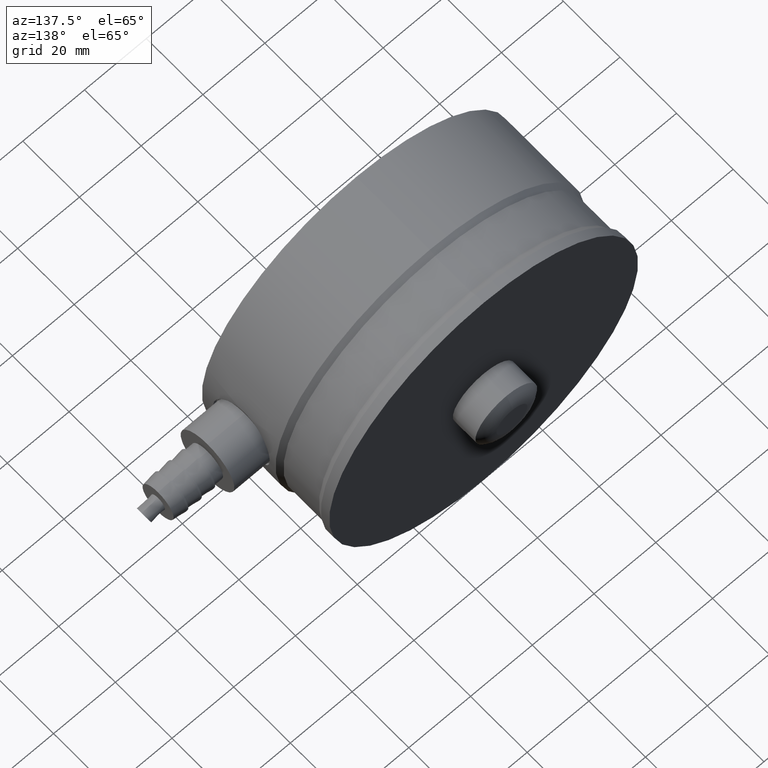
[diagram: clean part render]
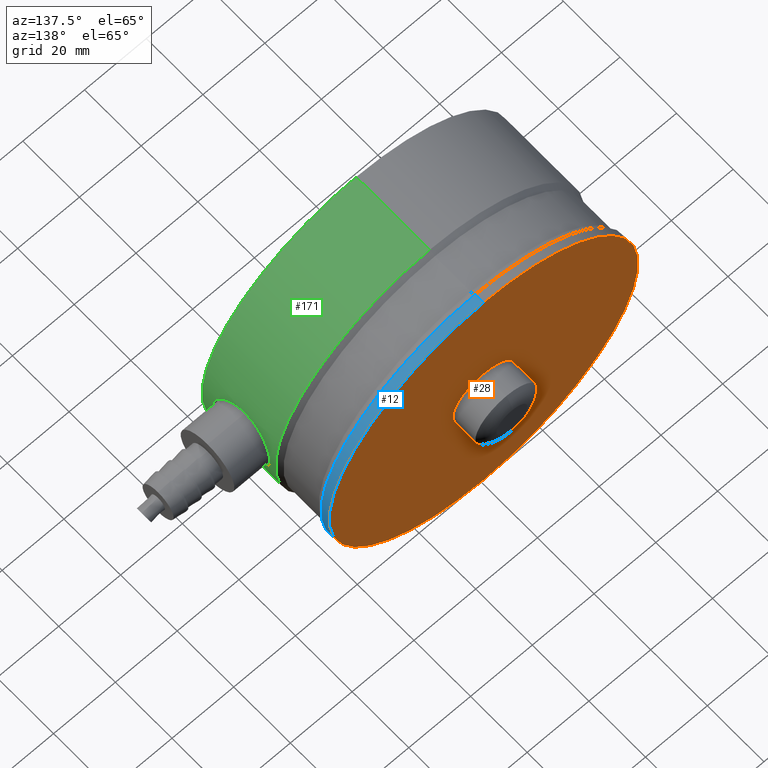
[diagram: same view with three faces highlighted in distinct colors, each labeled with its STEP entity id]
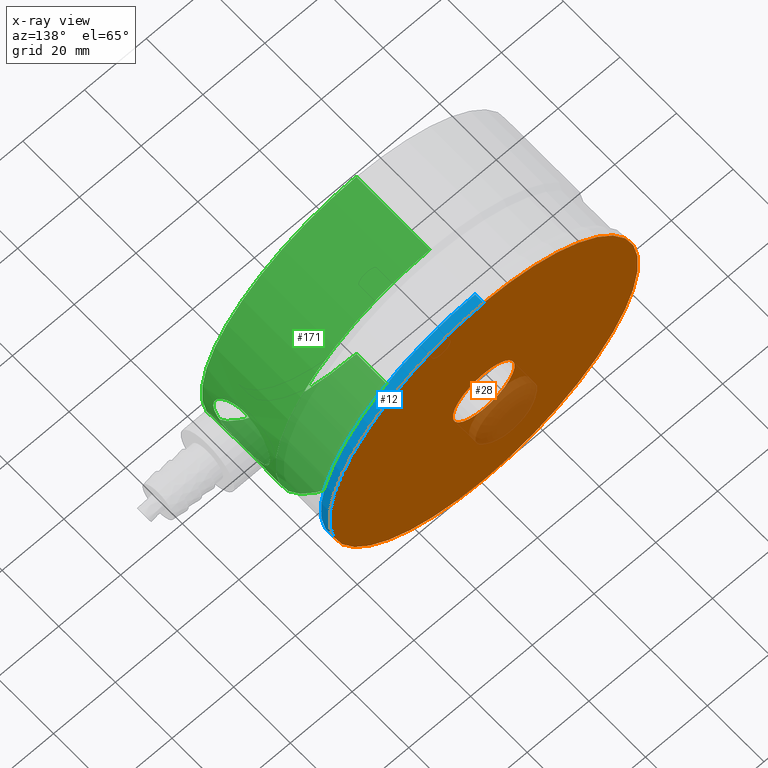
[diagram: x-ray of the same camera — body ghosted, the three highlighted faces saturated]
A machine part, auxiliary view with three faces highlighted in distinct colors.
The next image is the same camera in x-ray (body ghosted, the three faces saturated) — at least one of them is partly hidden behind the body in this view.
Their STEP definitions:

[orange] entity #28 — the highlighted planar face has unit normal (0, 1, 0).
#5 = VERTEX_POINT ( 'NONE', #1253 ) ;
#6 = EDGE_CURVE ( 'NONE', #80, #5, #1329, .T. ) ;
#21 = EDGE_CURVE ( 'NONE', #168, #167, #449, .T. ) ;
#26 = ORIENTED_EDGE ( 'NONE', *, *, #88, .F. ) ;
#28 = ADVANCED_FACE ( 'NONE', ( #444, #458 ), #457, .T. ) ;
#31 = ORIENTED_EDGE ( 'NONE', *, *, #32, .F. ) ;
#32 = EDGE_CURVE ( 'NONE', #5, #80, #454, .T. ) ;
#33 = EDGE_LOOP ( 'NONE', ( #31, #38 ) ) ;
#34 = ORIENTED_EDGE ( 'NONE', *, *, #21, .F. ) ;
#35 = EDGE_LOOP ( 'NONE', ( #26, #34 ) ) ;
#38 = ORIENTED_EDGE ( 'NONE', *, *, #6, .F. ) ;
#80 = VERTEX_POINT ( 'NONE', #529 ) ;
#88 = EDGE_CURVE ( 'NONE', #167, #168, #486, .T. ) ;
#167 = VERTEX_POINT ( 'NONE', #838 ) ;
#168 = VERTEX_POINT ( 'NONE', #808 ) ;
#444 = FACE_OUTER_BOUND ( 'NONE', #35, .T. ) ;
#446 = CARTESIAN_POINT ( 'NONE',  ( 0.0000000000000000000, 40.99999999999999300, 0.0000000000000000000 ) ) ;
#447 = AXIS2_PLACEMENT_3D ( 'NONE', #446, #448, #473 ) ;
#448 = DIRECTION ( 'NONE',  ( -0.0000000000000000000, -1.000000000000000000, -0.0000000000000000000 ) ) ;
#449 = CIRCLE ( 'NONE', #447, 50.00000000000000000 ) ;
#450 = DIRECTION ( 'NONE',  ( 0.0000000000000000000, 0.0000000000000000000, 1.000000000000000000 ) ) ;
#451 = DIRECTION ( 'NONE',  ( 0.0000000000000000000, 1.000000000000000000, 0.0000000000000000000 ) ) ;
#452 = CARTESIAN_POINT ( 'NONE',  ( 0.0000000000000000000, 40.99999999999999300, 0.0000000000000000000 ) ) ;
#453 = AXIS2_PLACEMENT_3D ( 'NONE', #452, #451, #450 ) ;
#454 = CIRCLE ( 'NONE', #453, 9.999999999999998200 ) ;
#457 = PLANE ( 'NONE',  #460 ) ;
#458 = FACE_BOUND ( 'NONE', #33, .T. ) ;
#459 = CARTESIAN_POINT ( 'NONE',  ( 50.00000000000000000, 40.99999999999999300, 0.0000000000000000000 ) ) ;
#460 = AXIS2_PLACEMENT_3D ( 'NONE', #459, #476, #475 ) ;
#473 = DIRECTION ( 'NONE',  ( 0.0000000000000000000, 0.0000000000000000000, -1.000000000000000000 ) ) ;
#475 = DIRECTION ( 'NONE',  ( 0.0000000000000000000, -0.0000000000000000000, 1.000000000000000000 ) ) ;
#476 = DIRECTION ( 'NONE',  ( 0.0000000000000000000, 1.000000000000000000, 0.0000000000000000000 ) ) ;
#483 = DIRECTION ( 'NONE',  ( 0.0000000000000000000, 0.0000000000000000000, -1.000000000000000000 ) ) ;
#484 = DIRECTION ( 'NONE',  ( -0.0000000000000000000, -1.000000000000000000, -0.0000000000000000000 ) ) ;
#485 = AXIS2_PLACEMENT_3D ( 'NONE', #575, #484, #483 ) ;
#486 = CIRCLE ( 'NONE', #485, 50.00000000000000000 ) ;
#529 = CARTESIAN_POINT ( 'NONE',  ( 1.224606353822377100E-015, 40.99999999999999300, 9.999999999999998200 ) ) ;
#575 = CARTESIAN_POINT ( 'NONE',  ( 0.0000000000000000000, 40.99999999999999300, 0.0000000000000000000 ) ) ;
#808 = CARTESIAN_POINT ( 'NONE',  ( 6.123031769111886300E-015, 40.99999999999999300, 50.00000000000000000 ) ) ;
#838 = CARTESIAN_POINT ( 'NONE',  ( 0.0000000000000000000, 40.99999999999999300, -50.00000000000000000 ) ) ;
#1253 = CARTESIAN_POINT ( 'NONE',  ( 0.0000000000000000000, 40.99999999999999300, -9.999999999999998200 ) ) ;
#1325 = DIRECTION ( 'NONE',  ( 0.0000000000000000000, 0.0000000000000000000, 1.000000000000000000 ) ) ;
#1326 = DIRECTION ( 'NONE',  ( 0.0000000000000000000, 1.000000000000000000, 0.0000000000000000000 ) ) ;
#1327 = CARTESIAN_POINT ( 'NONE',  ( 0.0000000000000000000, 40.99999999999999300, 0.0000000000000000000 ) ) ;
#1328 = AXIS2_PLACEMENT_3D ( 'NONE', #1327, #1326, #1325 ) ;
#1329 = CIRCLE ( 'NONE', #1328, 9.999999999999998200 ) ;

[blue] entity #12 — the highlighted cylindrical surface (partial cylindrical patch) has radius 50 mm, axis along (-0, -1, -0).
#8 = ORIENTED_EDGE ( 'NONE', *, *, #14, .F. ) ;
#10 = ORIENTED_EDGE ( 'NONE', *, *, #88, .T. ) ;
#11 = EDGE_LOOP ( 'NONE', ( #10, #169, #8, #25 ) ) ;
#12 = ADVANCED_FACE ( 'NONE', ( #1317 ), #1323, .T. ) ;
#14 = EDGE_CURVE ( 'NONE', #131, #16, #1309, .T. ) ;
#16 = VERTEX_POINT ( 'NONE', #443 ) ;
#25 = ORIENTED_EDGE ( 'NONE', *, *, #30, .F. ) ;
#27 = EDGE_CURVE ( 'NONE', #168, #16, #470, .T. ) ;
#30 = EDGE_CURVE ( 'NONE', #167, #131, #469, .T. ) ;
#88 = EDGE_CURVE ( 'NONE', #167, #168, #486, .T. ) ;
#131 = VERTEX_POINT ( 'NONE', #658 ) ;
#167 = VERTEX_POINT ( 'NONE', #838 ) ;
#168 = VERTEX_POINT ( 'NONE', #808 ) ;
#169 = ORIENTED_EDGE ( 'NONE', *, *, #27, .T. ) ;
#443 = CARTESIAN_POINT ( 'NONE',  ( 6.123031769111886300E-015, 37.99999999999999300, 50.00000000000000000 ) ) ;
#445 = DIRECTION ( 'NONE',  ( -0.0000000000000000000, -1.000000000000000000, -0.0000000000000000000 ) ) ;
#456 = VECTOR ( 'NONE', #445, 1000.000000000000000 ) ;
#466 = DIRECTION ( 'NONE',  ( -0.0000000000000000000, -1.000000000000000000, -0.0000000000000000000 ) ) ;
#467 = VECTOR ( 'NONE', #466, 1000.000000000000000 ) ;
#468 = CARTESIAN_POINT ( 'NONE',  ( 0.0000000000000000000, 0.0000000000000000000, -50.00000000000000000 ) ) ;
#469 = LINE ( 'NONE', #468, #467 ) ;
#470 = LINE ( 'NONE', #471, #456 ) ;
#471 = CARTESIAN_POINT ( 'NONE',  ( 6.123031769111886300E-015, 0.0000000000000000000, 50.00000000000000000 ) ) ;
#483 = DIRECTION ( 'NONE',  ( 0.0000000000000000000, 0.0000000000000000000, -1.000000000000000000 ) ) ;
#484 = DIRECTION ( 'NONE',  ( -0.0000000000000000000, -1.000000000000000000, -0.0000000000000000000 ) ) ;
#485 = AXIS2_PLACEMENT_3D ( 'NONE', #575, #484, #483 ) ;
#486 = CIRCLE ( 'NONE', #485, 50.00000000000000000 ) ;
#575 = CARTESIAN_POINT ( 'NONE',  ( 0.0000000000000000000, 40.99999999999999300, 0.0000000000000000000 ) ) ;
#658 = CARTESIAN_POINT ( 'NONE',  ( 0.0000000000000000000, 37.99999999999999300, -50.00000000000000000 ) ) ;
#808 = CARTESIAN_POINT ( 'NONE',  ( 6.123031769111886300E-015, 40.99999999999999300, 50.00000000000000000 ) ) ;
#838 = CARTESIAN_POINT ( 'NONE',  ( 0.0000000000000000000, 40.99999999999999300, -50.00000000000000000 ) ) ;
#1286 = DIRECTION ( 'NONE',  ( 0.0000000000000000000, 0.0000000000000000000, -1.000000000000000000 ) ) ;
#1287 = DIRECTION ( 'NONE',  ( -0.0000000000000000000, -1.000000000000000000, -0.0000000000000000000 ) ) ;
#1288 = AXIS2_PLACEMENT_3D ( 'NONE', #1322, #1287, #1286 ) ;
#1305 = DIRECTION ( 'NONE',  ( 0.0000000000000000000, 0.0000000000000000000, -1.000000000000000000 ) ) ;
#1306 = DIRECTION ( 'NONE',  ( -0.0000000000000000000, -1.000000000000000000, -0.0000000000000000000 ) ) ;
#1307 = CARTESIAN_POINT ( 'NONE',  ( 0.0000000000000000000, 37.99999999999999300, 0.0000000000000000000 ) ) ;
#1308 = AXIS2_PLACEMENT_3D ( 'NONE', #1307, #1306, #1305 ) ;
#1309 = CIRCLE ( 'NONE', #1308, 50.00000000000000000 ) ;
#1317 = FACE_OUTER_BOUND ( 'NONE', #11, .T. ) ;
#1322 = CARTESIAN_POINT ( 'NONE',  ( 0.0000000000000000000, 0.0000000000000000000, 0.0000000000000000000 ) ) ;
#1323 = CYLINDRICAL_SURFACE ( 'NONE', #1288, 50.00000000000000000 ) ;

[green] entity #171 — the highlighted cylindrical surface (partial cylindrical patch) has radius 50 mm, axis along (-0, -1, -0).
#13 = EDGE_CURVE ( 'NONE', #139, #159, #1285, .T. ) ;
#71 = EDGE_CURVE ( 'NONE', #175, #111, #496, .T. ) ;
#72 = ORIENTED_EDGE ( 'NONE', *, *, #160, .T. ) ;
#111 = VERTEX_POINT ( 'NONE', #599 ) ;
#116 = ORIENTED_EDGE ( 'NONE', *, *, #13, .F. ) ;
#119 = EDGE_CURVE ( 'NONE', #180, #176, #620, .T. ) ;
#120 = EDGE_CURVE ( 'NONE', #177, #155, #638, .T. ) ;
#121 = ORIENTED_EDGE ( 'NONE', *, *, #120, .T. ) ;
#122 = ORIENTED_EDGE ( 'NONE', *, *, #123, .F. ) ;
#123 = EDGE_CURVE ( 'NONE', #159, #155, #634, .T. ) ;
#139 = VERTEX_POINT ( 'NONE', #680 ) ;
#140 = EDGE_CURVE ( 'NONE', #176, #175, #635, .T. ) ;
#141 = ORIENTED_EDGE ( 'NONE', *, *, #71, .T. ) ;
#153 = ORIENTED_EDGE ( 'NONE', *, *, #173, .T. ) ;
#154 = EDGE_LOOP ( 'NONE', ( #153, #121, #122, #116 ) ) ;
#155 = VERTEX_POINT ( 'NONE', #663 ) ;
#156 = ORIENTED_EDGE ( 'NONE', *, *, #119, .T. ) ;
#159 = VERTEX_POINT ( 'NONE', #661 ) ;
#160 = EDGE_CURVE ( 'NONE', #111, #180, #762, .T. ) ;
#161 = EDGE_LOOP ( 'NONE', ( #162, #141, #72, #156 ) ) ;
#162 = ORIENTED_EDGE ( 'NONE', *, *, #140, .T. ) ;
#171 = ADVANCED_FACE ( 'NONE', ( #836, #809 ), #800, .T. ) ;
#173 = EDGE_CURVE ( 'NONE', #139, #177, #821, .T. ) ;
#175 = VERTEX_POINT ( 'NONE', #1003 ) ;
#176 = VERTEX_POINT ( 'NONE', #1029 ) ;
#177 = VERTEX_POINT ( 'NONE', #1049 ) ;
#180 = VERTEX_POINT ( 'NONE', #1028 ) ;
#465 = DIRECTION ( 'NONE',  ( -0.0000000000000000000, -1.000000000000000000, -0.0000000000000000000 ) ) ;
#493 = DIRECTION ( 'NONE',  ( 0.0000000000000000000, 1.000000000000000000, 0.0000000000000000000 ) ) ;
#494 = VECTOR ( 'NONE', #493, 1000.000000000000000 ) ;
#495 = CARTESIAN_POINT ( 'NONE',  ( 49.00000000000000000, 0.0000000000000000000, 9.949874371066206500 ) ) ;
#496 = LINE ( 'NONE', #495, #494 ) ;
#544 = CARTESIAN_POINT ( 'NONE',  ( 49.03902154903732900, 12.21727338029611200, -9.755919459366035400 ) ) ;
#599 = CARTESIAN_POINT ( 'NONE',  ( 49.00000000000000000, 10.99999999999993200, 9.949874371066206500 ) ) ;
#613 = VECTOR ( 'NONE', #465, 1000.000000000000000 ) ;
#614 = CARTESIAN_POINT ( 'NONE',  ( 49.00000000000000000, 0.0000000000000000000, -9.949874371066206500 ) ) ;
#615 = CARTESIAN_POINT ( 'NONE',  ( 49.01546948602482700, 11.61459459043106300, -9.873568253127007900 ) ) ;
#620 = LINE ( 'NONE', #614, #613 ) ;
#623 = CARTESIAN_POINT ( 'NONE',  ( 6.123031769111886300E-015, 0.0000000000000000000, 50.00000000000000000 ) ) ;
#626 = CARTESIAN_POINT ( 'NONE',  ( 0.0000000000000000000, -4.000000000000000000, 0.0000000000000000000 ) ) ;
#627 = AXIS2_PLACEMENT_3D ( 'NONE', #626, #641, #639 ) ;
#628 = CARTESIAN_POINT ( 'NONE',  ( 49.42436071877418200, 3.442528909245250500, 7.574578616590083700 ) ) ;
#629 = CARTESIAN_POINT ( 'NONE',  ( 49.48643053747486700, 2.994956445636239600, 7.162509778464515100 ) ) ;
#630 = CARTESIAN_POINT ( 'NONE',  ( 49.60894710393573300, 2.176224656899847800, 6.257852739225427300 ) ) ;
#631 = CARTESIAN_POINT ( 'NONE',  ( 49.66980869047673500, 1.803088408922743900, 5.760538067532688300 ) ) ;
#632 = CARTESIAN_POINT ( 'NONE',  ( 49.77946805256064500, 1.162867892846442900, 4.719984595329272300 ) ) ;
#633 = CARTESIAN_POINT ( 'NONE',  ( 49.82879966826207200, 0.8919576456233281300, 4.173777228931051300 ) ) ;
#634 = CIRCLE ( 'NONE', #627, 50.00000000000000000 ) ;
#635 = B_SPLINE_CURVE_WITH_KNOTS ( 'NONE', 3,
 ( #711, #710, #709, #679, #678, #677, #676, #651, #650, #649, #648, #646, #645, #644, #643, #701, #700, #699, #698, #697, #655, #654, #653, #652, #687, #686, #685, #684, #683, #682, #681, #633, #632, #631, #630, #629, #628, #724, #723, #722, #721, #720, #719, #718, #693, #692, #691, #690 ),
 .UNSPECIFIED., .F., .F.,
 ( 4, 2, 2, 2, 2, 2, 2, 2, 2, 2, 2, 2, 2, 2, 2, 2, 2, 2, 2, 2, 2, 2, 2, 4 ),
 ( 0.03234496741325317000, 0.03326190463503132800, 0.03417884185680949300, 0.03601271630036581600, 0.03692965352214397400, 0.03784659074392213200, 0.03968046518747845400, 0.04059740240925661200, 0.04151433963103477700, 0.04334821407459109300, 0.04518208851814740900, 0.04609902573992556700, 0.04701596296170372500, 0.04884983740526004100, 0.04976677462703821300, 0.05068371184881637100, 0.05251758629237268700, 0.05435146073592900300, 0.05618533517948531800, 0.05710227240126347600, 0.05801920962304164100, 0.05985308406659796400, 0.06077002128837612200, 0.06168695851015428700 ),
 .UNSPECIFIED. ) ;
#638 = LINE ( 'NONE', #623, #666 ) ;
#639 = DIRECTION ( 'NONE',  ( 0.0000000000000000000, 0.0000000000000000000, -1.000000000000000000 ) ) ;
#641 = DIRECTION ( 'NONE',  ( -0.0000000000000000000, -1.000000000000000000, -0.0000000000000000000 ) ) ;
#643 = CARTESIAN_POINT ( 'NONE',  ( 49.60915084824966900, 2.183305078391474500, -6.244440925254311400 ) ) ;
#644 = CARTESIAN_POINT ( 'NONE',  ( 49.57841625579079900, 2.380237124760455900, -6.483310341406280500 ) ) ;
#645 = CARTESIAN_POINT ( 'NONE',  ( 49.48600839315780300, 2.997804768691908700, -7.165588529500130500 ) ) ;
#646 = CARTESIAN_POINT ( 'NONE',  ( 49.42390495076711700, 3.446109304842413000, -7.577468273639726500 ) ) ;
#648 = CARTESIAN_POINT ( 'NONE',  ( 49.33456620015559200, 4.172719517396127600, -8.132384604012925100 ) ) ;
#649 = CARTESIAN_POINT ( 'NONE',  ( 49.30542105117050500, 4.424006488176758900, -8.306804594901258600 ) ) ;
#650 = CARTESIAN_POINT ( 'NONE',  ( 49.24918628750065600, 4.945347826839844500, -8.633956082244969500 ) ) ;
#651 = CARTESIAN_POINT ( 'NONE',  ( 49.22222201901190900, 5.214485557024271000, -8.785930187987586800 ) ) ;
#652 = CARTESIAN_POINT ( 'NONE',  ( 49.99709904680133100, 0.01447611026911175900, -0.6193115776203648200 ) ) ;
#653 = CARTESIAN_POINT ( 'NONE',  ( 49.98578804626875200, 0.07126489107366616700, -1.230631268631873900 ) ) ;
#654 = CARTESIAN_POINT ( 'NONE',  ( 49.97738025410004800, 0.1135673460361732000, -1.533519935580566000 ) ) ;
#655 = CARTESIAN_POINT ( 'NONE',  ( 49.94433352278042500, 0.2815379164939581500, -2.434015363180046500 ) ) ;
#661 = CARTESIAN_POINT ( 'NONE',  ( 0.0000000000000000000, -4.000000000000000000, -50.00000000000000000 ) ) ;
#663 = CARTESIAN_POINT ( 'NONE',  ( 6.123031769111886300E-015, -4.000000000000000000, 50.00000000000000000 ) ) ;
#666 = VECTOR ( 'NONE', #667, 1000.000000000000000 ) ;
#667 = DIRECTION ( 'NONE',  ( -0.0000000000000000000, -1.000000000000000000, -0.0000000000000000000 ) ) ;
#676 = CARTESIAN_POINT ( 'NONE',  ( 49.14705025730732000, 6.034072495064622300, -9.200341843327374000 ) ) ;
#677 = CARTESIAN_POINT ( 'NONE',  ( 49.10402721454962500, 6.601378391557836300, -9.424719476643753400 ) ) ;
#678 = CARTESIAN_POINT ( 'NONE',  ( 49.05347782616344400, 7.484056463383213400, -9.683182309202681600 ) ) ;
#679 = CARTESIAN_POINT ( 'NONE',  ( 49.03891099504600200, 7.784905659124578200, -9.756476725191923500 ) ) ;
#680 = CARTESIAN_POINT ( 'NONE',  ( 0.0000000000000000000, 21.99999999999998900, -50.00000000000000000 ) ) ;
#681 = CARTESIAN_POINT ( 'NONE',  ( 49.89083065143423600, 0.5603616129948576500, 3.314730772482830100 ) ) ;
#682 = CARTESIAN_POINT ( 'NONE',  ( 49.90958542239085500, 0.4619974782132269000, 3.020156810951792400 ) ) ;
#683 = CARTESIAN_POINT ( 'NONE',  ( 49.94191808664652400, 0.2942307237399626700, 2.427525906011315000 ) ) ;
#684 = CARTESIAN_POINT ( 'NONE',  ( 49.95555573981189200, 0.2244921759356902900, 2.129063702611450700 ) ) ;
#685 = CARTESIAN_POINT ( 'NONE',  ( 49.98855296125404400, 0.05678910312873500200, 1.227362592236254300 ) ) ;
#686 = CARTESIAN_POINT ( 'NONE',  ( 50.00000372153995400, -1.860769975979321100E-005, 0.6178615546164875100 ) ) ;
#687 = CARTESIAN_POINT ( 'NONE',  ( 49.99999813787019300, 9.310648999026446700E-006, -0.3093824116638402300 ) ) ;
#690 = CARTESIAN_POINT ( 'NONE',  ( 49.00000000000000000, 9.000000000000069300, 9.949874371066206500 ) ) ;
#691 = CARTESIAN_POINT ( 'NONE',  ( 49.00624567920850400, 8.693961718782814400, 9.919116366512179500 ) ) ;
#692 = CARTESIAN_POINT ( 'NONE',  ( 49.01531946113716700, 8.389783936095845700, 9.874313498196450200 ) ) ;
#693 = CARTESIAN_POINT ( 'NONE',  ( 49.03890566551002900, 7.785158523525025100, 9.756502450530405200 ) ) ;
#697 = CARTESIAN_POINT ( 'NONE',  ( 49.91173402053441800, 0.4486147774929004100, -3.025332144630061800 ) ) ;
#698 = CARTESIAN_POINT ( 'NONE',  ( 49.82849678171082500, 0.8935814802348027700, -4.177886546680792200 ) ) ;
#699 = CARTESIAN_POINT ( 'NONE',  ( 49.77901510105031900, 1.165449621460507900, -4.724562840272114700 ) ) ;
#700 = CARTESIAN_POINT ( 'NONE',  ( 49.69700594601767600, 1.644335215639358000, -5.502323110928101900 ) ) ;
#701 = CARTESIAN_POINT ( 'NONE',  ( 49.66836788768735300, 1.815890992920380800, -5.754487095018086900 ) ) ;
#709 = CARTESIAN_POINT ( 'NONE',  ( 49.01525679808209200, 8.391506810437684600, -9.874625597323763800 ) ) ;
#710 = CARTESIAN_POINT ( 'NONE',  ( 49.00621543537140900, 8.695443666800869700, -9.919265307892022300 ) ) ;
#711 = CARTESIAN_POINT ( 'NONE',  ( 49.00000000000000000, 9.000000000000069300, -9.949874371066206500 ) ) ;
#718 = CARTESIAN_POINT ( 'NONE',  ( 49.05350735674684200, 7.483315591234769700, 9.683037214528418700 ) ) ;
#719 = CARTESIAN_POINT ( 'NONE',  ( 49.10433865209091000, 6.596393072216955900, 9.423115213463351100 ) ) ;
#720 = CARTESIAN_POINT ( 'NONE',  ( 49.14747086008549800, 6.029185176688904400, 9.198063766915334200 ) ) ;
#721 = CARTESIAN_POINT ( 'NONE',  ( 49.22235964089784200, 5.213136912088877800, 8.785151030739935900 ) ) ;
#722 = CARTESIAN_POINT ( 'NONE',  ( 49.24902390790198600, 4.946952006626248500, 8.634875333706560200 ) ) ;
#723 = CARTESIAN_POINT ( 'NONE',  ( 49.30514481273289100, 4.426469418151819800, 8.308436850888112300 ) ) ;
#724 = CARTESIAN_POINT ( 'NONE',  ( 49.33463337381878200, 4.172110262645909500, 8.131996574672784900 ) ) ;
#727 = CARTESIAN_POINT ( 'NONE',  ( 49.00627309061394500, 11.30738144008270600, -9.918981373967009000 ) ) ;
#728 = CARTESIAN_POINT ( 'NONE',  ( 49.00000000000000000, 10.99999999999993200, -9.949874371066206500 ) ) ;
#735 = CARTESIAN_POINT ( 'NONE',  ( 49.00000000000000000, 10.99999999999993200, 9.949874371066206500 ) ) ;
#736 = CARTESIAN_POINT ( 'NONE',  ( 49.05340426423141800, 12.51435612927617100, -9.683550528780653400 ) ) ;
#737 = CARTESIAN_POINT ( 'NONE',  ( 49.10367617485855600, 13.39309316468252000, -9.426530068317401100 ) ) ;
#738 = CARTESIAN_POINT ( 'NONE',  ( 49.14677272227215400, 13.96315493568303800, -9.201906002858885700 ) ) ;
#739 = CARTESIAN_POINT ( 'NONE',  ( 49.24794127702289600, 15.06567350454501800, -8.644109154506891100 ) ) ;
#740 = CARTESIAN_POINT ( 'NONE',  ( 49.30448867361167900, 15.58240569114495400, -8.319092349499184600 ) ) ;
#741 = CARTESIAN_POINT ( 'NONE',  ( 49.39369355571562200, 16.30829815080893000, -7.765179466406838300 ) ) ;
#742 = CARTESIAN_POINT ( 'NONE',  ( 49.42416421963363900, 16.54200547074967900, -7.569401871674144500 ) ) ;
#743 = CARTESIAN_POINT ( 'NONE',  ( 49.48583422865791400, 16.99268303844910500, -7.155142500188866000 ) ) ;
#744 = CARTESIAN_POINT ( 'NONE',  ( 49.51719231080014100, 17.21067244985633900, -6.935450037743946100 ) ) ;
#745 = CARTESIAN_POINT ( 'NONE',  ( 49.60967298256783700, 17.82850590947808600, -6.252323795670351500 ) ) ;
#746 = CARTESIAN_POINT ( 'NONE',  ( 49.66931941366964800, 18.19394331055565300, -5.764681977671655100 ) ) ;
#747 = CARTESIAN_POINT ( 'NONE',  ( 49.75151451442471300, 18.67398699957956900, -4.985480503542039100 ) ) ;
#748 = CARTESIAN_POINT ( 'NONE',  ( 49.77770306264387300, 18.82257561381002000, -4.717739622192689300 ) ) ;
#749 = CARTESIAN_POINT ( 'NONE',  ( 49.82693673613619000, 19.09624882990607400, -4.165713003632687300 ) ) ;
#750 = CARTESIAN_POINT ( 'NONE',  ( 49.84988457891638100, 19.22077674738131500, -3.882175159844081200 ) ) ;
#751 = CARTESIAN_POINT ( 'NONE',  ( 49.91177428328962400, 19.55155156407036500, -3.023887217794003000 ) ) ;
#752 = CARTESIAN_POINT ( 'NONE',  ( 49.94426363728045000, 19.71810854269686400, -2.436188637974175700 ) ) ;
#753 = CARTESIAN_POINT ( 'NONE',  ( 49.97746015478045200, 19.88683793571202300, -1.531207959365346300 ) ) ;
#754 = CARTESIAN_POINT ( 'NONE',  ( 49.98595583843164300, 19.92957969606598600, -1.224407648685623700 ) ) ;
#755 = CARTESIAN_POINT ( 'NONE',  ( 49.99725021871458400, 19.98628065355886100, -0.6082152078348824800 ) ) ;
#756 = CARTESIAN_POINT ( 'NONE',  ( 50.00003173547551700, 20.00015867739844600, -0.3010453539581676200 ) ) ;
#757 = CARTESIAN_POINT ( 'NONE',  ( 49.89050348432439800, 19.43790263407279200, 3.319499755862734600 ) ) ;
#758 = CARTESIAN_POINT ( 'NONE',  ( 49.82880086114525400, 19.10802218393650500, 4.173280596193357900 ) ) ;
#759 = CARTESIAN_POINT ( 'NONE',  ( 49.77947508019184400, 18.83727839627535200, 4.720387800195259100 ) ) ;
#760 = CARTESIAN_POINT ( 'NONE',  ( 49.69648249947161400, 18.35258704646330900, 5.507193227101282700 ) ) ;
#761 = CARTESIAN_POINT ( 'NONE',  ( 49.39373615710636800, 16.30874288545570400, 7.764960283365639700 ) ) ;
#762 = B_SPLINE_CURVE_WITH_KNOTS ( 'NONE', 3,
 ( #735, #776, #765, #771, #770, #773, #772, #767, #766, #761, #779, #764, #763, #778, #775, #774, #760, #759, #758, #757, #784, #783, #782, #781, #780, #756, #755, #754, #753, #752, #751, #750, #749, #748, #747, #746, #745, #744, #743, #742, #741, #740, #739, #738, #737, #736, #544, #615, #727, #728 ),
 .UNSPECIFIED., .F., .F.,
 ( 4, 2, 2, 2, 2, 2, 2, 2, 2, 2, 2, 2, 2, 2, 2, 2, 2, 2, 2, 2, 2, 2, 2, 2, 4 ),
 ( 0.0009942542800812702100, 0.002828781099037462100, 0.003746044508515558700, 0.004663307917993655300, 0.006497834736949849300, 0.007415098146427942900, 0.008332361555906036400, 0.009249624965384128200, 0.01016688837486222200, 0.01200141519381841400, 0.01291867860329650800, 0.01383594201277460300, 0.01567046883173078800, 0.01658773224120888700, 0.01750499565068697900, 0.01933952246964316900, 0.02025678587912126500, 0.02117404928859936000, 0.02300857610755556100, 0.02392583951703366000, 0.02484310292651175900, 0.02667762974546797000, 0.02851215656442418100, 0.02942941997390228400, 0.03034668338338038600 ),
 .UNSPECIFIED. ) ;
#763 = CARTESIAN_POINT ( 'NONE',  ( 49.51695777465792500, 17.20901363528852800, 6.937053204161690800 ) ) ;
#764 = CARTESIAN_POINT ( 'NONE',  ( 49.48610159722138500, 16.99455920505744200, 7.153283543574104900 ) ) ;
#765 = CARTESIAN_POINT ( 'NONE',  ( 49.03606562338928400, 12.20977451555455000, 9.772157029116671700 ) ) ;
#766 = CARTESIAN_POINT ( 'NONE',  ( 49.30348964985236600, 15.57407863246459100, 8.325204345073837300 ) ) ;
#767 = CARTESIAN_POINT ( 'NONE',  ( 49.24709652271493400, 15.05671375377513700, 8.648799929860869500 ) ) ;
#770 = CARTESIAN_POINT ( 'NONE',  ( 49.10606787185072600, 13.38927957213356200, 9.413146441987219500 ) ) ;
#771 = CARTESIAN_POINT ( 'NONE',  ( 49.08659678133074100, 13.09529101539940000, 9.513869487901070300 ) ) ;
#772 = CARTESIAN_POINT ( 'NONE',  ( 49.17220329793953900, 14.24016941777106400, 9.061676823976561900 ) ) ;
#773 = CARTESIAN_POINT ( 'NONE',  ( 49.14885300748718300, 13.96119503872994700, 9.187136432072813700 ) ) ;
#774 = CARTESIAN_POINT ( 'NONE',  ( 49.66746984069434500, 18.17865520900928900, 5.762208483290783600 ) ) ;
#775 = CARTESIAN_POINT ( 'NONE',  ( 49.60832038068489400, 17.81142059066393200, 6.251012397085343500 ) ) ;
#776 = CARTESIAN_POINT ( 'NONE',  ( 49.01244314388692700, 11.60971405045864600, 9.888595803345625200 ) ) ;
#778 = CARTESIAN_POINT ( 'NONE',  ( 49.57806660032823500, 17.61744433278660800, 6.485917559454731100 ) ) ;
#779 = CARTESIAN_POINT ( 'NONE',  ( 49.42454606263372300, 16.54487285437526700, 7.566899183145211300 ) ) ;
#780 = CARTESIAN_POINT ( 'NONE',  ( 49.99993570986495700, 19.99967854928258500, 0.6177672896543691100 ) ) ;
#781 = CARTESIAN_POINT ( 'NONE',  ( 49.98861925233976700, 19.94355514278130700, 1.226734678840009100 ) ) ;
#782 = CARTESIAN_POINT ( 'NONE',  ( 49.95532583688891000, 19.77433568076497000, 2.134749098178824400 ) ) ;
#783 = CARTESIAN_POINT ( 'NONE',  ( 49.94142266469364700, 19.70322130973112000, 2.437641233546536900 ) ) ;
#784 = CARTESIAN_POINT ( 'NONE',  ( 49.90902547674014000, 19.53507367826493300, 3.029351171317975900 ) ) ;
#800 = CYLINDRICAL_SURFACE ( 'NONE', #807, 50.00000000000000000 ) ;
#806 = CARTESIAN_POINT ( 'NONE',  ( 0.0000000000000000000, 0.0000000000000000000, 0.0000000000000000000 ) ) ;
#807 = AXIS2_PLACEMENT_3D ( 'NONE', #806, #835, #839 ) ;
#809 = FACE_OUTER_BOUND ( 'NONE', #154, .T. ) ;
#817 = DIRECTION ( 'NONE',  ( 0.0000000000000000000, 0.0000000000000000000, -1.000000000000000000 ) ) ;
#818 = DIRECTION ( 'NONE',  ( -0.0000000000000000000, -1.000000000000000000, -0.0000000000000000000 ) ) ;
#819 = CARTESIAN_POINT ( 'NONE',  ( 0.0000000000000000000, 21.99999999999998900, 0.0000000000000000000 ) ) ;
#820 = AXIS2_PLACEMENT_3D ( 'NONE', #819, #818, #817 ) ;
#821 = CIRCLE ( 'NONE', #820, 50.00000000000000000 ) ;
#835 = DIRECTION ( 'NONE',  ( -0.0000000000000000000, -1.000000000000000000, -0.0000000000000000000 ) ) ;
#836 = FACE_BOUND ( 'NONE', #161, .T. ) ;
#839 = DIRECTION ( 'NONE',  ( 0.0000000000000000000, 0.0000000000000000000, -1.000000000000000000 ) ) ;
#1003 = CARTESIAN_POINT ( 'NONE',  ( 49.00000000000000000, 9.000000000000069300, 9.949874371066206500 ) ) ;
#1028 = CARTESIAN_POINT ( 'NONE',  ( 49.00000000000000000, 10.99999999999993200, -9.949874371066206500 ) ) ;
#1029 = CARTESIAN_POINT ( 'NONE',  ( 49.00000000000000000, 9.000000000000069300, -9.949874371066206500 ) ) ;
#1049 = CARTESIAN_POINT ( 'NONE',  ( 6.123031769111886300E-015, 21.99999999999998900, 50.00000000000000000 ) ) ;
#1282 = DIRECTION ( 'NONE',  ( -0.0000000000000000000, -1.000000000000000000, -0.0000000000000000000 ) ) ;
#1283 = VECTOR ( 'NONE', #1282, 1000.000000000000000 ) ;
#1284 = CARTESIAN_POINT ( 'NONE',  ( 0.0000000000000000000, 0.0000000000000000000, -50.00000000000000000 ) ) ;
#1285 = LINE ( 'NONE', #1284, #1283 ) ;